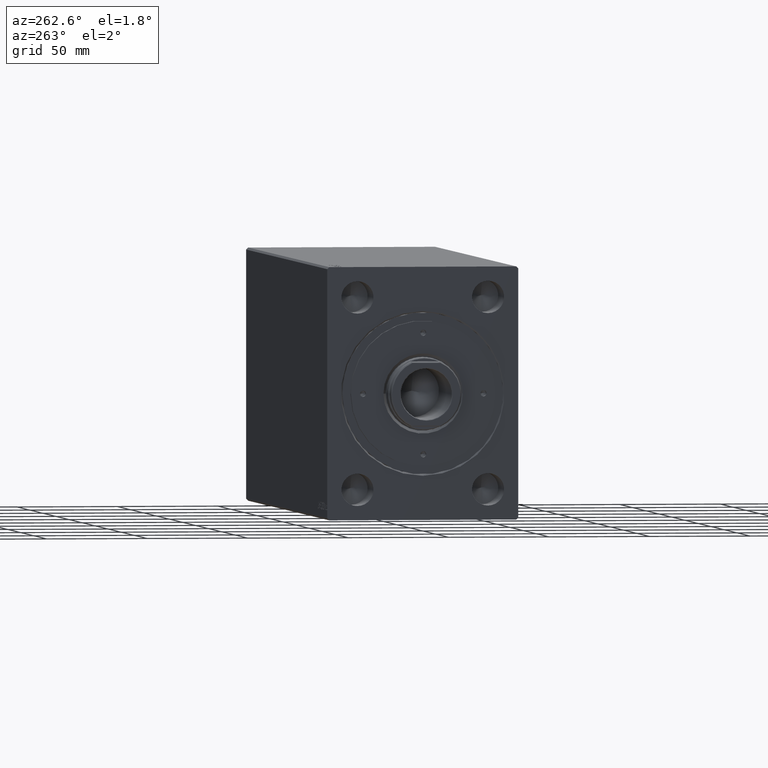
[diagram: clean part render]
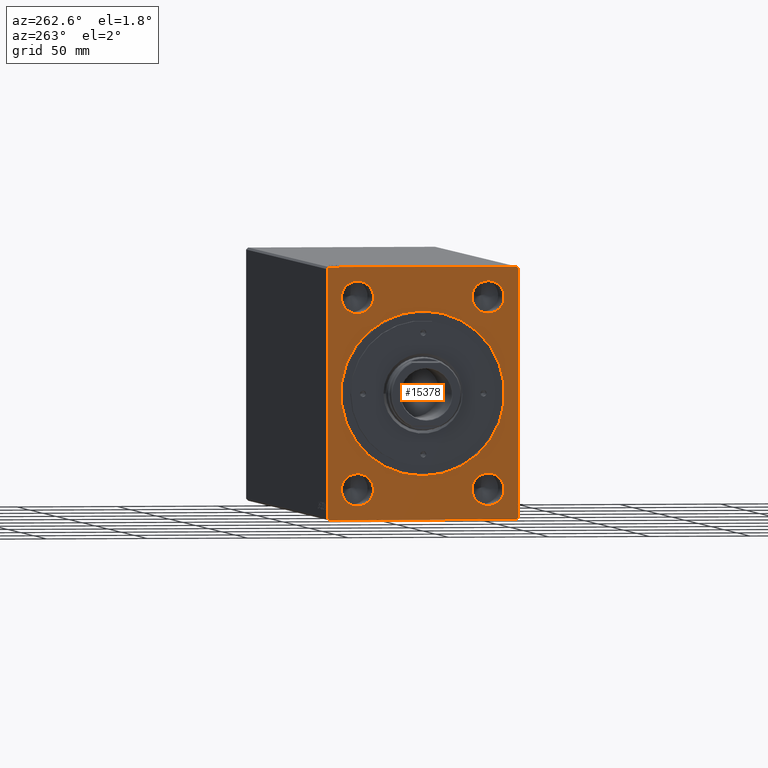
[diagram: same view with one face highlighted and labeled with its STEP entity id]
A machine part, auxiliary view. The second image highlights one B-rep face of the part: STEP entity #15378.
In plain terms, the highlighted planar face has unit normal (1, 0, 0).
Its self-contained STEP definition (entity closure, byte-faithful):
#219 = DIRECTION ( 'NONE',  ( 0.000000000000000000, 0.000000000000000000, 1.000000000000000000 ) ) ;
#966 = VERTEX_POINT ( 'NONE', #3160 ) ;
#1219 = DIRECTION ( 'NONE',  ( 0.000000000000000000, 0.7071067811865574537, 0.7071067811865376918 ) ) ;
#1751 = VECTOR ( 'NONE', #21270, 1000.000000000000114 ) ;
#2070 = CARTESIAN_POINT ( 'NONE',  ( 4.898587196589409870E-16, -32.50000000000000000, 39.50000000000000711 ) ) ;
#2078 = AXIS2_PLACEMENT_3D ( 'NONE', #28121, #8117, #35016 ) ;
#2302 = EDGE_CURVE ( 'NONE', #41112, #11558, #30225, .T. ) ;
#2536 = VERTEX_POINT ( 'NONE', #25745 ) ;
#2824 = EDGE_CURVE ( 'NONE', #38252, #966, #38171, .T. ) ;
#3127 = CARTESIAN_POINT ( 'NONE',  ( 4.898587196589409870E-16, 32.50000000000000000, 47.50000000000000000 ) ) ;
#3160 = CARTESIAN_POINT ( 'NONE',  ( 0.000000000000000000, 46.50000000000000000, -62.50000000000000000 ) ) ;
#3210 = VECTOR ( 'NONE', #1219, 999.9999999999998863 ) ;
#3729 = DIRECTION ( 'NONE',  ( 0.000000000000000000, -1.000000000000000000, -7.461176240760460157E-17 ) ) ;
#3926 = EDGE_LOOP ( 'NONE', ( #21588, #14982 ) ) ;
#4275 = FACE_OUTER_BOUND ( 'NONE', #33374, .T. ) ;
#4663 = AXIS2_PLACEMENT_3D ( 'NONE', #22523, #9178, #19403 ) ;
#4982 = ORIENTED_EDGE ( 'NONE', *, *, #6595, .F. ) ;
#5117 = VERTEX_POINT ( 'NONE', #19270 ) ;
#5959 = VERTEX_POINT ( 'NONE', #39511 ) ;
#6045 = VECTOR ( 'NONE', #43595, 1000.000000000000000 ) ;
#6323 = ORIENTED_EDGE ( 'NONE', *, *, #18781, .F. ) ;
#6595 = EDGE_CURVE ( 'NONE', #5117, #43116, #37148, .T. ) ;
#6797 = VECTOR ( 'NONE', #21073, 1000.000000000000000 ) ;
#6947 = EDGE_CURVE ( 'NONE', #2536, #5117, #23231, .T. ) ;
#7130 = DIRECTION ( 'NONE',  ( 0.000000000000000000, 0.000000000000000000, 1.000000000000000000 ) ) ;
#7351 = CARTESIAN_POINT ( 'NONE',  ( 0.000000000000000000, -47.50000000000001421, 61.49999999999997868 ) ) ;
#7458 = EDGE_CURVE ( 'NONE', #37827, #39071, #14609, .T. ) ;
#7502 = AXIS2_PLACEMENT_3D ( 'NONE', #25604, #38950, #35185 ) ;
#7713 = CARTESIAN_POINT ( 'NONE',  ( 0.000000000000000000, -47.49999999999999289, -61.50000000000001421 ) ) ;
#7898 = AXIS2_PLACEMENT_3D ( 'NONE', #36752, #33190, #26517 ) ;
#8117 = DIRECTION ( 'NONE',  ( -1.000000000000000000, -0.000000000000000000, -0.000000000000000000 ) ) ;
#8653 = EDGE_CURVE ( 'NONE', #32641, #5959, #24058, .T. ) ;
#8766 = EDGE_CURVE ( 'NONE', #11558, #40214, #11548, .T. ) ;
#9178 = DIRECTION ( 'NONE',  ( 1.000000000000000000, 0.000000000000000000, 0.000000000000000000 ) ) ;
#9196 = ORIENTED_EDGE ( 'NONE', *, *, #34524, .F. ) ;
#10003 = CARTESIAN_POINT ( 'NONE',  ( 0.000000000000000000, 47.50000000000001421, -61.50000000000001421 ) ) ;
#10503 = FACE_BOUND ( 'NONE', #23671, .T. ) ;
#10526 = VERTEX_POINT ( 'NONE', #39289 ) ;
#11181 = CARTESIAN_POINT ( 'NONE',  ( 4.898587196589409870E-16, -32.50000000000000000, 55.49999999999999289 ) ) ;
#11202 = CARTESIAN_POINT ( 'NONE',  ( 4.898587196589409870E-16, 32.50000000000000000, -55.49999999999999289 ) ) ;
#11209 = LINE ( 'NONE', #18102, #3210 ) ;
#11457 = EDGE_LOOP ( 'NONE', ( #42462, #35678 ) ) ;
#11541 = CARTESIAN_POINT ( 'NONE',  ( -1.084202172485504434E-16, 0.000000000000000000, 40.69999999999998863 ) ) ;
#11548 = LINE ( 'NONE', #25336, #35413 ) ;
#11558 = VERTEX_POINT ( 'NONE', #42120 ) ;
#11729 = VERTEX_POINT ( 'NONE', #2070 ) ;
#12027 = EDGE_CURVE ( 'NONE', #43184, #10526, #33258, .T. ) ;
#12242 = DIRECTION ( 'NONE',  ( 0.000000000000000000, 0.000000000000000000, 1.000000000000000000 ) ) ;
#13194 = CARTESIAN_POINT ( 'NONE',  ( 0.000000000000000000, -47.49999999999999289, -61.50000000000001421 ) ) ;
#13502 = AXIS2_PLACEMENT_3D ( 'NONE', #42077, #39148, #12242 ) ;
#13651 = VERTEX_POINT ( 'NONE', #41383 ) ;
#13774 = CARTESIAN_POINT ( 'NONE',  ( 4.898587196589409870E-16, -32.50000000000000000, -47.50000000000000711 ) ) ;
#13783 = CIRCLE ( 'NONE', #39322, 8.000000000000000000 ) ;
#13786 = DIRECTION ( 'NONE',  ( -1.000000000000000000, -0.000000000000000000, -0.000000000000000000 ) ) ;
#13879 = VECTOR ( 'NONE', #24027, 1000.000000000000000 ) ;
#13954 = EDGE_CURVE ( 'NONE', #28185, #11729, #30443, .T. ) ;
#13974 = CARTESIAN_POINT ( 'NONE',  ( 0.000000000000000000, 46.50000000000000000, 62.49999999999998579 ) ) ;
#14303 = CARTESIAN_POINT ( 'NONE',  ( 4.898587196589409870E-16, -32.50000000000000000, -55.50000000000000711 ) ) ;
#14386 = LINE ( 'NONE', #7713, #1751 ) ;
#14396 = CARTESIAN_POINT ( 'NONE',  ( 0.000000000000000000, -46.50000000000000000, -62.50000000000001421 ) ) ;
#14609 = CIRCLE ( 'NONE', #4663, 40.69999999999998863 ) ;
#14982 = ORIENTED_EDGE ( 'NONE', *, *, #8653, .F. ) ;
#15378 = ADVANCED_FACE ( 'NONE', ( #23170, #36730, #19835, #10503, #41206, #4275 ), #28257, .F. ) ;
#15529 = EDGE_CURVE ( 'NONE', #5959, #32641, #18450, .T. ) ;
#15762 = ORIENTED_EDGE ( 'NONE', *, *, #2302, .F. ) ;
#16557 = CARTESIAN_POINT ( 'NONE',  ( 0.000000000000000000, -46.50000000000001421, 62.49999999999997868 ) ) ;
#17659 = CARTESIAN_POINT ( 'NONE',  ( 4.898587196589409870E-16, -32.50000000000000000, -47.50000000000000711 ) ) ;
#18102 = CARTESIAN_POINT ( 'NONE',  ( 0.000000000000000000, 46.50000000000000000, -62.50000000000000000 ) ) ;
#18450 = CIRCLE ( 'NONE', #13502, 7.999999999999992895 ) ;
#18781 = EDGE_CURVE ( 'NONE', #13651, #43936, #34143, .T. ) ;
#19002 = CARTESIAN_POINT ( 'NONE',  ( 0.000000000000000000, -46.50000000000000000, -62.50000000000001421 ) ) ;
#19270 = CARTESIAN_POINT ( 'NONE',  ( 0.000000000000000000, -47.50000000000001421, 61.49999999999997868 ) ) ;
#19403 = DIRECTION ( 'NONE',  ( 0.000000000000000000, 0.000000000000000000, -1.000000000000000000 ) ) ;
#19420 = VECTOR ( 'NONE', #3729, 1000.000000000000000 ) ;
#19442 = ORIENTED_EDGE ( 'NONE', *, *, #6947, .F. ) ;
#19835 = FACE_BOUND ( 'NONE', #27472, .T. ) ;
#19963 = ORIENTED_EDGE ( 'NONE', *, *, #2824, .F. ) ;
#20233 = CARTESIAN_POINT ( 'NONE',  ( 4.898587196589409870E-16, 32.50000000000000000, -47.50000000000000000 ) ) ;
#20736 = DIRECTION ( 'NONE',  ( 0.000000000000000000, 0.000000000000000000, -1.000000000000000000 ) ) ;
#21039 = ORIENTED_EDGE ( 'NONE', *, *, #35723, .F. ) ;
#21073 = DIRECTION ( 'NONE',  ( 0.000000000000000000, 1.000000000000000000, 1.492235248152092278E-16 ) ) ;
#21270 = DIRECTION ( 'NONE',  ( 0.000000000000000000, 0.7071067811865451302, -0.7071067811865500152 ) ) ;
#21588 = ORIENTED_EDGE ( 'NONE', *, *, #15529, .F. ) ;
#21875 = DIRECTION ( 'NONE',  ( -1.000000000000000000, -0.000000000000000000, -0.000000000000000000 ) ) ;
#22235 = DIRECTION ( 'NONE',  ( 0.000000000000000000, 0.000000000000000000, -1.000000000000000000 ) ) ;
#22399 = CIRCLE ( 'NONE', #7502, 7.999999999999992895 ) ;
#22446 = ORIENTED_EDGE ( 'NONE', *, *, #7458, .T. ) ;
#22523 = CARTESIAN_POINT ( 'NONE',  ( 0.000000000000000000, 0.000000000000000000, 0.000000000000000000 ) ) ;
#23170 = FACE_BOUND ( 'NONE', #3926, .T. ) ;
#23231 = LINE ( 'NONE', #16557, #32361 ) ;
#23671 = EDGE_LOOP ( 'NONE', ( #27306, #39339 ) ) ;
#23838 = AXIS2_PLACEMENT_3D ( 'NONE', #20233, #13786, #219 ) ;
#24027 = DIRECTION ( 'NONE',  ( 0.000000000000000000, 1.692413147294445970E-16, -1.000000000000000000 ) ) ;
#24058 = CIRCLE ( 'NONE', #39662, 7.999999999999992895 ) ;
#24481 = EDGE_CURVE ( 'NONE', #39071, #37827, #33447, .T. ) ;
#24546 = CIRCLE ( 'NONE', #23838, 7.999999999999992895 ) ;
#24988 = DIRECTION ( 'NONE',  ( 0.000000000000000000, 0.000000000000000000, 1.000000000000000000 ) ) ;
#25336 = CARTESIAN_POINT ( 'NONE',  ( 0.000000000000000000, 47.50000000000000000, 61.49999999999998579 ) ) ;
#25604 = CARTESIAN_POINT ( 'NONE',  ( 4.898587196589409870E-16, -32.50000000000000000, 47.50000000000000000 ) ) ;
#25745 = CARTESIAN_POINT ( 'NONE',  ( 0.000000000000000000, -46.50000000000001421, 62.49999999999997868 ) ) ;
#26447 = CARTESIAN_POINT ( 'NONE',  ( 4.898587196589409870E-16, 32.50000000000000000, 39.50000000000000711 ) ) ;
#26517 = DIRECTION ( 'NONE',  ( 0.000000000000000000, 0.000000000000000000, 1.000000000000000000 ) ) ;
#26871 = ORIENTED_EDGE ( 'NONE', *, *, #30896, .F. ) ;
#27306 = ORIENTED_EDGE ( 'NONE', *, *, #13954, .F. ) ;
#27472 = EDGE_LOOP ( 'NONE', ( #6323, #27526 ) ) ;
#27526 = ORIENTED_EDGE ( 'NONE', *, *, #41518, .F. ) ;
#28014 = ORIENTED_EDGE ( 'NONE', *, *, #8766, .F. ) ;
#28121 = CARTESIAN_POINT ( 'NONE',  ( 4.898587196589409870E-16, -32.50000000000000000, 47.50000000000000000 ) ) ;
#28185 = VERTEX_POINT ( 'NONE', #11181 ) ;
#28257 = PLANE ( 'NONE',  #39020 ) ;
#29810 = ORIENTED_EDGE ( 'NONE', *, *, #24481, .T. ) ;
#29894 = DIRECTION ( 'NONE',  ( 0.000000000000000000, -0.7071067811865474617, -0.7071067811865474617 ) ) ;
#30225 = LINE ( 'NONE', #10003, #6045 ) ;
#30443 = CIRCLE ( 'NONE', #2078, 7.999999999999992895 ) ;
#30475 = CARTESIAN_POINT ( 'NONE',  ( -1.084202172485504434E-16, 4.984312472529725736E-15, -40.69999999999998863 ) ) ;
#30718 = EDGE_LOOP ( 'NONE', ( #29810, #22446 ) ) ;
#30896 = EDGE_CURVE ( 'NONE', #40214, #2536, #34178, .T. ) ;
#31803 = DIRECTION ( 'NONE',  ( 1.000000000000000000, 0.000000000000000000, 0.000000000000000000 ) ) ;
#32228 = EDGE_CURVE ( 'NONE', #10526, #43184, #13783, .T. ) ;
#32361 = VECTOR ( 'NONE', #29894, 1000.000000000000114 ) ;
#32641 = VERTEX_POINT ( 'NONE', #26447 ) ;
#33190 = DIRECTION ( 'NONE',  ( -1.000000000000000000, -0.000000000000000000, -0.000000000000000000 ) ) ;
#33258 = CIRCLE ( 'NONE', #34712, 8.000000000000000000 ) ;
#33374 = EDGE_LOOP ( 'NONE', ( #28014, #15762, #21039, #19963, #9196, #4982, #19442, #26871 ) ) ;
#33447 = CIRCLE ( 'NONE', #38412, 40.69999999999998863 ) ;
#33578 = DIRECTION ( 'NONE',  ( -1.000000000000000000, -0.000000000000000000, -0.000000000000000000 ) ) ;
#34003 = DIRECTION ( 'NONE',  ( 0.000000000000000000, 0.000000000000000000, 1.000000000000000000 ) ) ;
#34143 = CIRCLE ( 'NONE', #7898, 7.999999999999992895 ) ;
#34178 = LINE ( 'NONE', #41086, #19420 ) ;
#34524 = EDGE_CURVE ( 'NONE', #43116, #38252, #14386, .T. ) ;
#34692 = DIRECTION ( 'NONE',  ( 0.000000000000000000, -0.7071067811865474617, 0.7071067811865474617 ) ) ;
#34712 = AXIS2_PLACEMENT_3D ( 'NONE', #13774, #37122, #34003 ) ;
#35016 = DIRECTION ( 'NONE',  ( 0.000000000000000000, 0.000000000000000000, 1.000000000000000000 ) ) ;
#35185 = DIRECTION ( 'NONE',  ( 0.000000000000000000, 0.000000000000000000, 1.000000000000000000 ) ) ;
#35413 = VECTOR ( 'NONE', #34692, 1000.000000000000114 ) ;
#35678 = ORIENTED_EDGE ( 'NONE', *, *, #12027, .F. ) ;
#35723 = EDGE_CURVE ( 'NONE', #966, #41112, #11209, .T. ) ;
#36730 = FACE_BOUND ( 'NONE', #11457, .T. ) ;
#36752 = CARTESIAN_POINT ( 'NONE',  ( 4.898587196589409870E-16, 32.50000000000000000, -47.50000000000000000 ) ) ;
#37122 = DIRECTION ( 'NONE',  ( -1.000000000000000000, -0.000000000000000000, -0.000000000000000000 ) ) ;
#37148 = LINE ( 'NONE', #7351, #13879 ) ;
#37827 = VERTEX_POINT ( 'NONE', #30475 ) ;
#37843 = DIRECTION ( 'NONE',  ( 1.000000000000000000, 0.000000000000000000, 0.000000000000000000 ) ) ;
#38171 = LINE ( 'NONE', #14396, #6797 ) ;
#38252 = VERTEX_POINT ( 'NONE', #19002 ) ;
#38412 = AXIS2_PLACEMENT_3D ( 'NONE', #42933, #31803, #22235 ) ;
#38950 = DIRECTION ( 'NONE',  ( -1.000000000000000000, -0.000000000000000000, -0.000000000000000000 ) ) ;
#39020 = AXIS2_PLACEMENT_3D ( 'NONE', #41862, #37843, #20736 ) ;
#39071 = VERTEX_POINT ( 'NONE', #11541 ) ;
#39148 = DIRECTION ( 'NONE',  ( -1.000000000000000000, -0.000000000000000000, -0.000000000000000000 ) ) ;
#39289 = CARTESIAN_POINT ( 'NONE',  ( 4.898587196589409870E-16, -32.50000000000000000, -39.50000000000000711 ) ) ;
#39322 = AXIS2_PLACEMENT_3D ( 'NONE', #17659, #21875, #24988 ) ;
#39339 = ORIENTED_EDGE ( 'NONE', *, *, #40843, .F. ) ;
#39511 = CARTESIAN_POINT ( 'NONE',  ( 4.898587196589409870E-16, 32.50000000000000000, 55.49999999999999289 ) ) ;
#39662 = AXIS2_PLACEMENT_3D ( 'NONE', #3127, #33578, #7130 ) ;
#40214 = VERTEX_POINT ( 'NONE', #13974 ) ;
#40843 = EDGE_CURVE ( 'NONE', #11729, #28185, #22399, .T. ) ;
#41086 = CARTESIAN_POINT ( 'NONE',  ( 0.000000000000000000, 46.50000000000000000, 62.49999999999998579 ) ) ;
#41112 = VERTEX_POINT ( 'NONE', #41619 ) ;
#41206 = FACE_BOUND ( 'NONE', #30718, .T. ) ;
#41383 = CARTESIAN_POINT ( 'NONE',  ( 4.898587196589409870E-16, 32.50000000000000000, -39.50000000000000711 ) ) ;
#41518 = EDGE_CURVE ( 'NONE', #43936, #13651, #24546, .T. ) ;
#41619 = CARTESIAN_POINT ( 'NONE',  ( 0.000000000000000000, 47.50000000000001421, -61.50000000000001421 ) ) ;
#41862 = CARTESIAN_POINT ( 'NONE',  ( 0.000000000000000000, 0.000000000000000000, 0.000000000000000000 ) ) ;
#42077 = CARTESIAN_POINT ( 'NONE',  ( 4.898587196589409870E-16, 32.50000000000000000, 47.50000000000000000 ) ) ;
#42120 = CARTESIAN_POINT ( 'NONE',  ( 0.000000000000000000, 47.50000000000000000, 61.49999999999998579 ) ) ;
#42462 = ORIENTED_EDGE ( 'NONE', *, *, #32228, .F. ) ;
#42933 = CARTESIAN_POINT ( 'NONE',  ( 0.000000000000000000, 0.000000000000000000, 0.000000000000000000 ) ) ;
#43116 = VERTEX_POINT ( 'NONE', #13194 ) ;
#43184 = VERTEX_POINT ( 'NONE', #14303 ) ;
#43595 = DIRECTION ( 'NONE',  ( 0.000000000000000000, -1.128275431529630729E-16, 1.000000000000000000 ) ) ;
#43936 = VERTEX_POINT ( 'NONE', #11202 ) ;